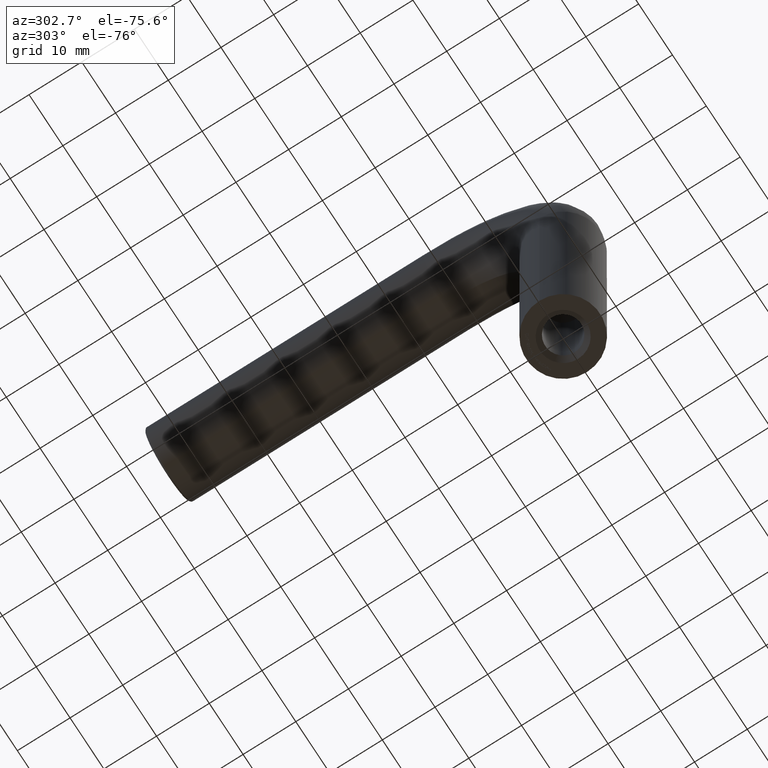
[diagram: clean part render]
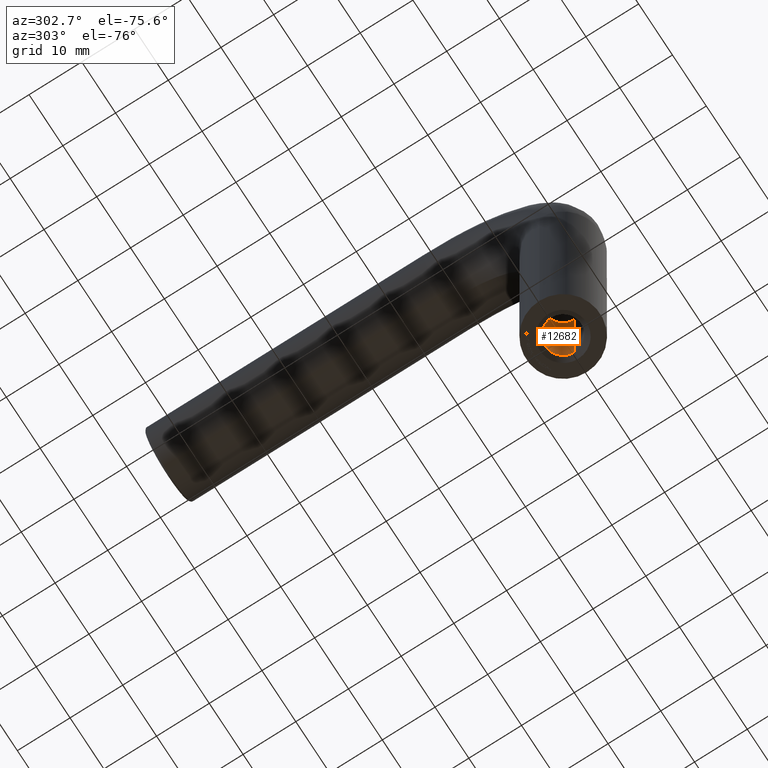
[diagram: same view with one face highlighted and labeled with its STEP entity id]
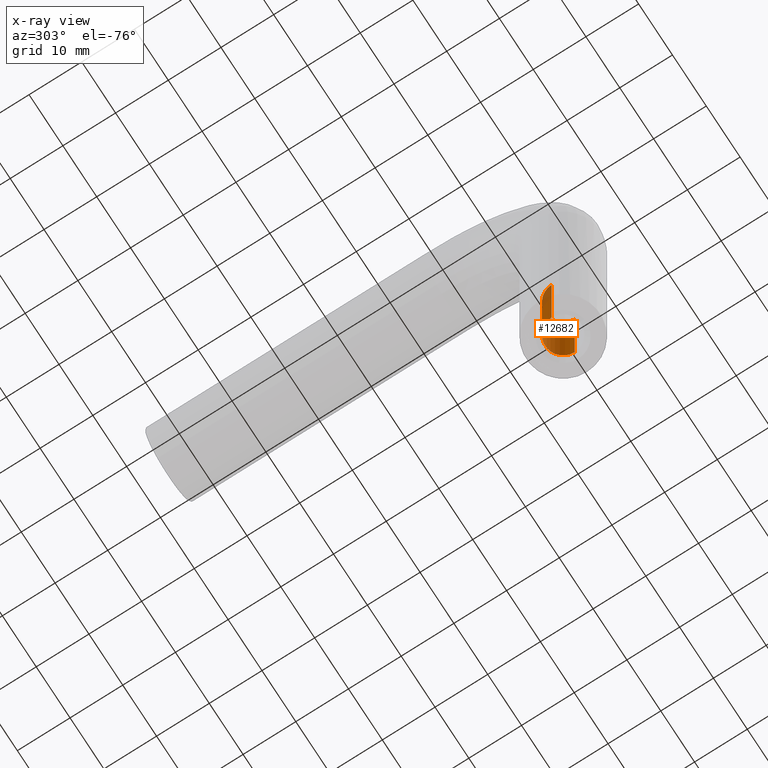
[diagram: x-ray of the same camera — body ghosted, the highlighted face saturated]
A machine part, auxiliary view. The second image highlights one B-rep face of the part: STEP entity #12682.
The next image is the same camera in x-ray: the body ghosted, the highlighted face saturated — about 10% of this face is hidden behind the body in this view.
In plain terms, the highlighted cylindrical surface (edge-blend (fillet) strip) has radius 3.4 mm, axis along (-0, -0, -1).
Its self-contained STEP definition (entity closure, byte-faithful):
#737 = CIRCLE ( 'NONE', #4514, 3.399999999999994582 ) ;
#776 = DIRECTION ( 'NONE',  ( -0.000000000000000000, -0.000000000000000000, -1.000000000000000000 ) ) ;
#1648 = CARTESIAN_POINT ( 'NONE',  ( 3.399999999999994582, 4.163799117100994643E-16, 22.00000000000000000 ) ) ;
#1685 = DIRECTION ( 'NONE',  ( 1.000000000000000000, 0.000000000000000000, 0.000000000000000000 ) ) ;
#1714 = EDGE_CURVE ( 'NONE', #11208, #5568, #10521, .T. ) ;
#2763 = AXIS2_PLACEMENT_3D ( 'NONE', #9410, #4301, #4159 ) ;
#3675 = VECTOR ( 'NONE', #5190, 1000.000000000000000 ) ;
#3789 = ORIENTED_EDGE ( 'NONE', *, *, #1714, .F. ) ;
#3916 = DIRECTION ( 'NONE',  ( 0.000000000000000000, 0.000000000000000000, -1.000000000000000000 ) ) ;
#3963 = CARTESIAN_POINT ( 'NONE',  ( 0.000000000000000000, 0.000000000000000000, 0.9999999999999935607 ) ) ;
#4159 = DIRECTION ( 'NONE',  ( -1.000000000000000000, 0.000000000000000000, 0.000000000000000000 ) ) ;
#4270 = EDGE_CURVE ( 'NONE', #8135, #11801, #12950, .T. ) ;
#4299 = CARTESIAN_POINT ( 'NONE',  ( -3.399999999999992362, 0.000000000000000000, 0.000000000000000000 ) ) ;
#4301 = DIRECTION ( 'NONE',  ( -0.000000000000000000, -0.000000000000000000, -1.000000000000000000 ) ) ;
#4514 = AXIS2_PLACEMENT_3D ( 'NONE', #13214, #776, #5930 ) ;
#4566 = CARTESIAN_POINT ( 'NONE',  ( -3.399999999999992362, 0.000000000000000000, 0.9999999999999935607 ) ) ;
#4649 = CYLINDRICAL_SURFACE ( 'NONE', #2763, 3.399999999999992362 ) ;
#4691 = VECTOR ( 'NONE', #6294, 1000.000000000000000 ) ;
#5190 = DIRECTION ( 'NONE',  ( -0.000000000000000000, -0.000000000000000000, -1.000000000000000000 ) ) ;
#5338 = EDGE_CURVE ( 'NONE', #11801, #5568, #8842, .T. ) ;
#5568 = VERTEX_POINT ( 'NONE', #7769 ) ;
#5930 = DIRECTION ( 'NONE',  ( -1.000000000000000000, 0.000000000000000000, 0.000000000000000000 ) ) ;
#6294 = DIRECTION ( 'NONE',  ( -0.000000000000000000, -0.000000000000000000, -1.000000000000000000 ) ) ;
#7016 = CARTESIAN_POINT ( 'NONE',  ( 3.399999999999992362, 4.163799117100991685E-16, 0.000000000000000000 ) ) ;
#7257 = EDGE_LOOP ( 'NONE', ( #3789, #7542, #10601, #12007 ) ) ;
#7542 = ORIENTED_EDGE ( 'NONE', *, *, #10963, .F. ) ;
#7610 = CARTESIAN_POINT ( 'NONE',  ( -3.399999999999994582, 0.000000000000000000, 22.00000000000000000 ) ) ;
#7769 = CARTESIAN_POINT ( 'NONE',  ( 3.399999999999992362, 4.163799117100991685E-16, 0.9999999999999935607 ) ) ;
#8135 = VERTEX_POINT ( 'NONE', #7610 ) ;
#8842 = CIRCLE ( 'NONE', #11320, 3.399999999999992362 ) ;
#9410 = CARTESIAN_POINT ( 'NONE',  ( 0.000000000000000000, 0.000000000000000000, 0.000000000000000000 ) ) ;
#10521 = LINE ( 'NONE', #7016, #4691 ) ;
#10601 = ORIENTED_EDGE ( 'NONE', *, *, #4270, .T. ) ;
#10963 = EDGE_CURVE ( 'NONE', #8135, #11208, #737, .T. ) ;
#11208 = VERTEX_POINT ( 'NONE', #1648 ) ;
#11320 = AXIS2_PLACEMENT_3D ( 'NONE', #3963, #3916, #1685 ) ;
#11801 = VERTEX_POINT ( 'NONE', #4566 ) ;
#12007 = ORIENTED_EDGE ( 'NONE', *, *, #5338, .T. ) ;
#12682 = ADVANCED_FACE ( 'NONE', ( #13243 ), #4649, .F. ) ;
#12950 = LINE ( 'NONE', #4299, #3675 ) ;
#13214 = CARTESIAN_POINT ( 'NONE',  ( 0.000000000000000000, 0.000000000000000000, 22.00000000000000000 ) ) ;
#13243 = FACE_OUTER_BOUND ( 'NONE', #7257, .T. ) ;